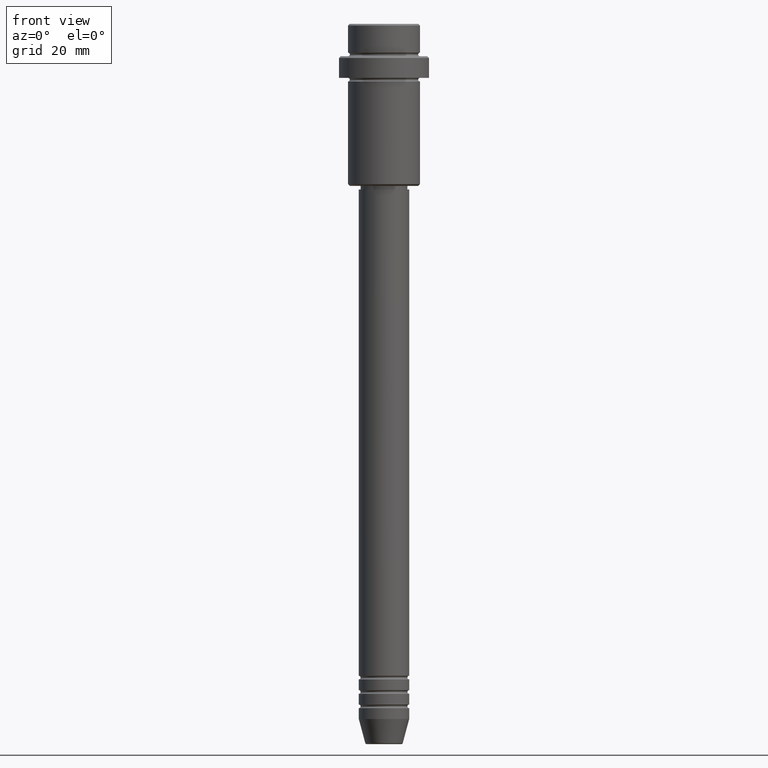
[diagram: clean part render]
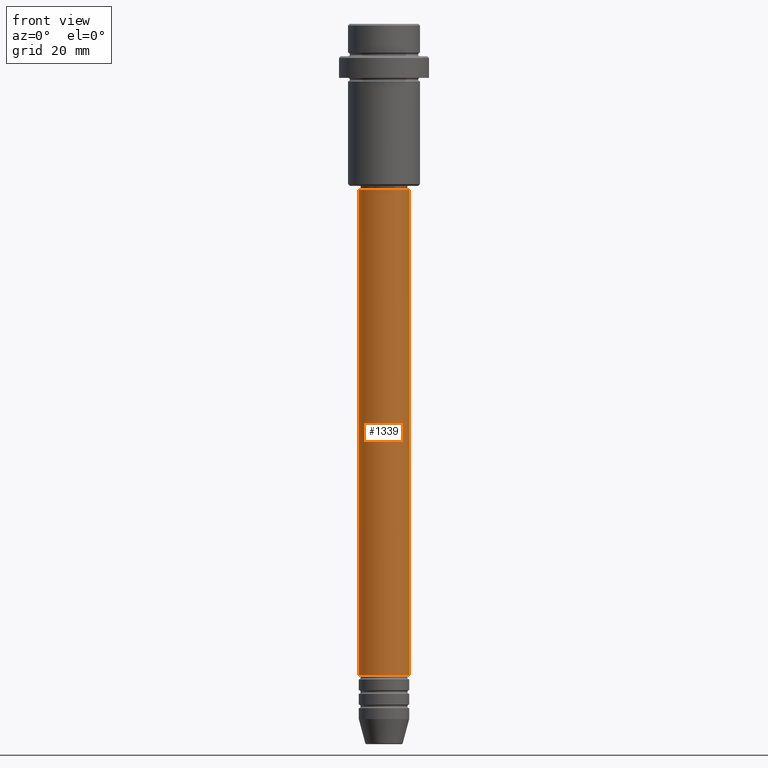
[diagram: same view with one face highlighted and labeled with its STEP entity id]
A machine part, front view. The second image highlights one B-rep face of the part: STEP entity #1339.
In plain terms, the highlighted cylindrical surface (edge-blend (fillet) strip) has radius 7 mm, axis along (-0, -0, 1).
Its self-contained STEP definition (entity closure, byte-faithful):
#1 = ORIENTED_EDGE ( 'NONE', *, *, #455, .F. ) ;
#36 = VERTEX_POINT ( 'NONE', #781 ) ;
#65 = ORIENTED_EDGE ( 'NONE', *, *, #503, .T. ) ;
#67 = CARTESIAN_POINT ( 'NONE',  ( -7.000000000000000000, 8.572527594031473190E-16, -180.9999999999998863 ) ) ;
#112 = ORIENTED_EDGE ( 'NONE', *, *, #1386, .F. ) ;
#169 = CARTESIAN_POINT ( 'NONE',  ( 7.000000000000000000, 0.000000000000000000, -46.00000000000001421 ) ) ;
#196 = DIRECTION ( 'NONE',  ( -0.000000000000000000, -0.000000000000000000, 1.000000000000000000 ) ) ;
#251 = AXIS2_PLACEMENT_3D ( 'NONE', #882, #1080, #1307 ) ;
#403 = DIRECTION ( 'NONE',  ( 1.000000000000000000, 0.000000000000000000, 0.000000000000000000 ) ) ;
#411 = LINE ( 'NONE', #873, #929 ) ;
#452 = EDGE_CURVE ( 'NONE', #507, #851, #411, .T. ) ;
#455 = EDGE_CURVE ( 'NONE', #36, #851, #695, .T. ) ;
#472 = DIRECTION ( 'NONE',  ( -0.000000000000000000, -0.000000000000000000, 1.000000000000000000 ) ) ;
#480 = CARTESIAN_POINT ( 'NONE',  ( -7.000000000000000000, 8.572527594031473190E-16, 0.000000000000000000 ) ) ;
#503 = EDGE_CURVE ( 'NONE', #1115, #507, #883, .T. ) ;
#507 = VERTEX_POINT ( 'NONE', #541 ) ;
#541 = CARTESIAN_POINT ( 'NONE',  ( 7.000000000000000000, 0.000000000000000000, -180.9999999999998863 ) ) ;
#547 = DIRECTION ( 'NONE',  ( -0.000000000000000000, -0.000000000000000000, 1.000000000000000000 ) ) ;
#587 = EDGE_LOOP ( 'NONE', ( #112, #65, #1295, #1 ) ) ;
#648 = AXIS2_PLACEMENT_3D ( 'NONE', #1279, #1389, #403 ) ;
#695 = CIRCLE ( 'NONE', #648, 7.000000000000000000 ) ;
#762 = FACE_OUTER_BOUND ( 'NONE', #587, .T. ) ;
#781 = CARTESIAN_POINT ( 'NONE',  ( -7.000000000000000000, 8.572527594031473190E-16, -46.00000000000001421 ) ) ;
#851 = VERTEX_POINT ( 'NONE', #169 ) ;
#873 = CARTESIAN_POINT ( 'NONE',  ( 7.000000000000000000, 0.000000000000000000, 0.000000000000000000 ) ) ;
#882 = CARTESIAN_POINT ( 'NONE',  ( 0.000000000000000000, 0.000000000000000000, -180.9999999999998863 ) ) ;
#883 = CIRCLE ( 'NONE', #251, 7.000000000000000000 ) ;
#929 = VECTOR ( 'NONE', #547, 1000.000000000000000 ) ;
#1080 = DIRECTION ( 'NONE',  ( -0.000000000000000000, -0.000000000000000000, 1.000000000000000000 ) ) ;
#1115 = VERTEX_POINT ( 'NONE', #67 ) ;
#1138 = LINE ( 'NONE', #480, #1287 ) ;
#1198 = AXIS2_PLACEMENT_3D ( 'NONE', #1216, #196, #1318 ) ;
#1216 = CARTESIAN_POINT ( 'NONE',  ( 0.000000000000000000, 0.000000000000000000, 0.000000000000000000 ) ) ;
#1279 = CARTESIAN_POINT ( 'NONE',  ( 0.000000000000000000, 0.000000000000000000, -46.00000000000001421 ) ) ;
#1287 = VECTOR ( 'NONE', #472, 1000.000000000000000 ) ;
#1295 = ORIENTED_EDGE ( 'NONE', *, *, #452, .T. ) ;
#1302 = CYLINDRICAL_SURFACE ( 'NONE', #1198, 7.000000000000000000 ) ;
#1307 = DIRECTION ( 'NONE',  ( 1.000000000000000000, 0.000000000000000000, 0.000000000000000000 ) ) ;
#1318 = DIRECTION ( 'NONE',  ( 1.000000000000000000, 0.000000000000000000, 0.000000000000000000 ) ) ;
#1339 = ADVANCED_FACE ( 'NONE', ( #762 ), #1302, .T. ) ;
#1386 = EDGE_CURVE ( 'NONE', #1115, #36, #1138, .T. ) ;
#1389 = DIRECTION ( 'NONE',  ( -0.000000000000000000, -0.000000000000000000, 1.000000000000000000 ) ) ;